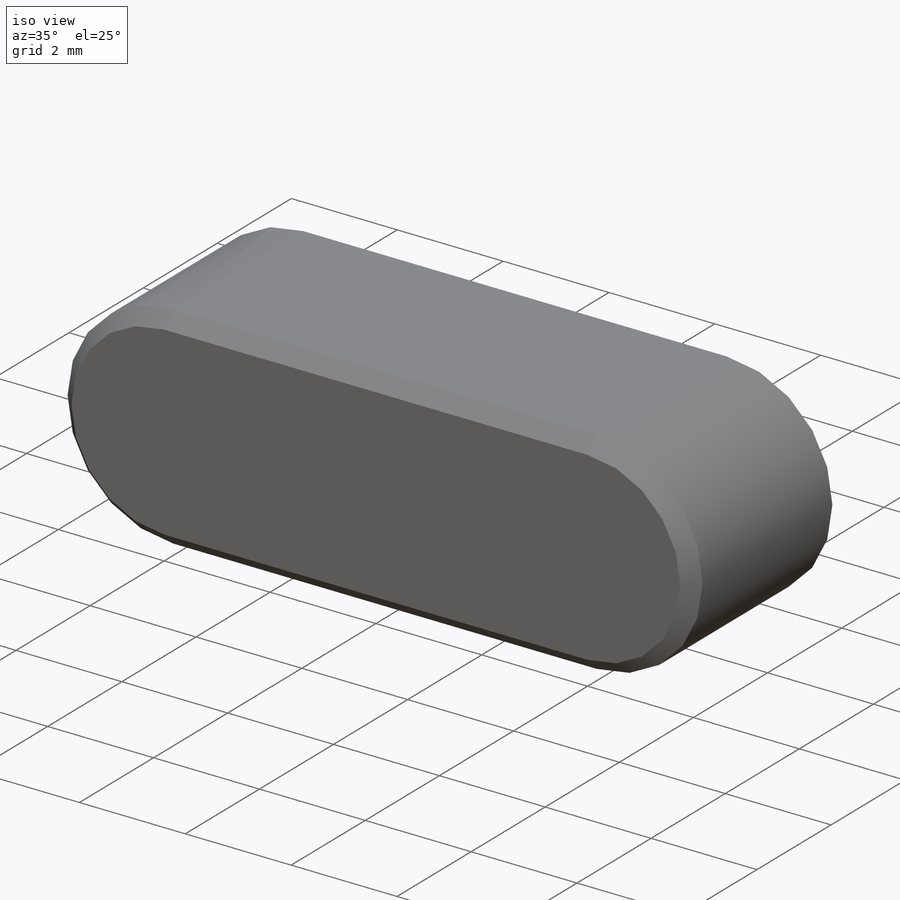
[diagram: iso view]
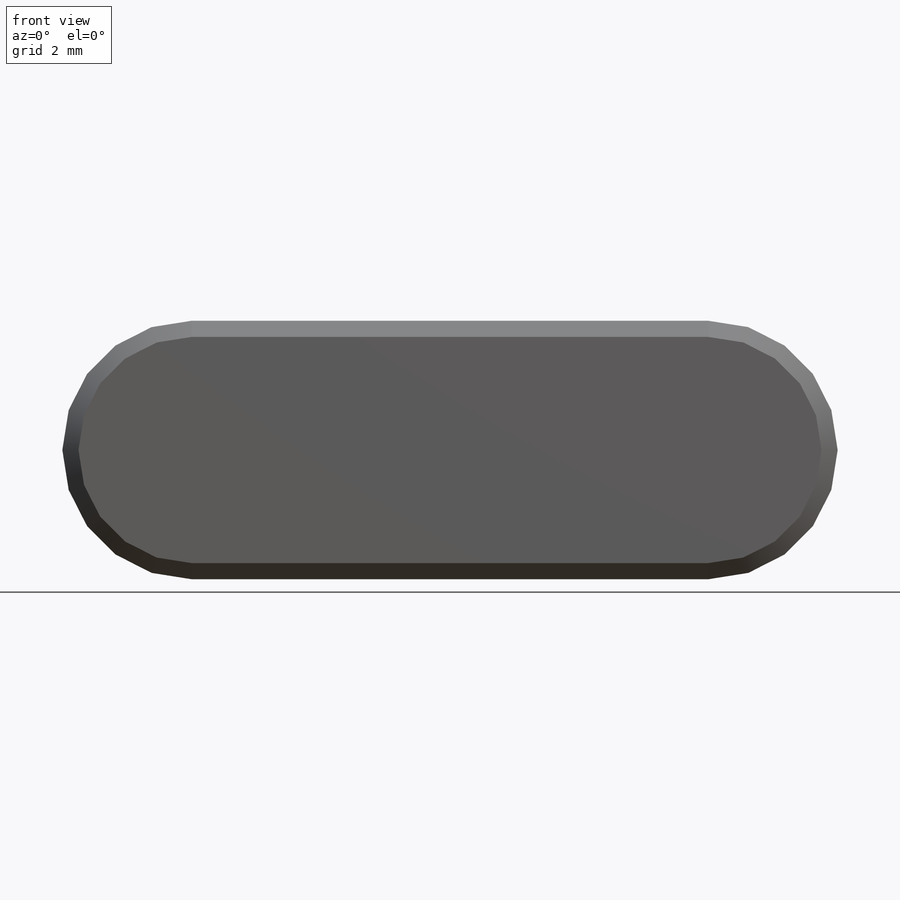
[diagram: front view]
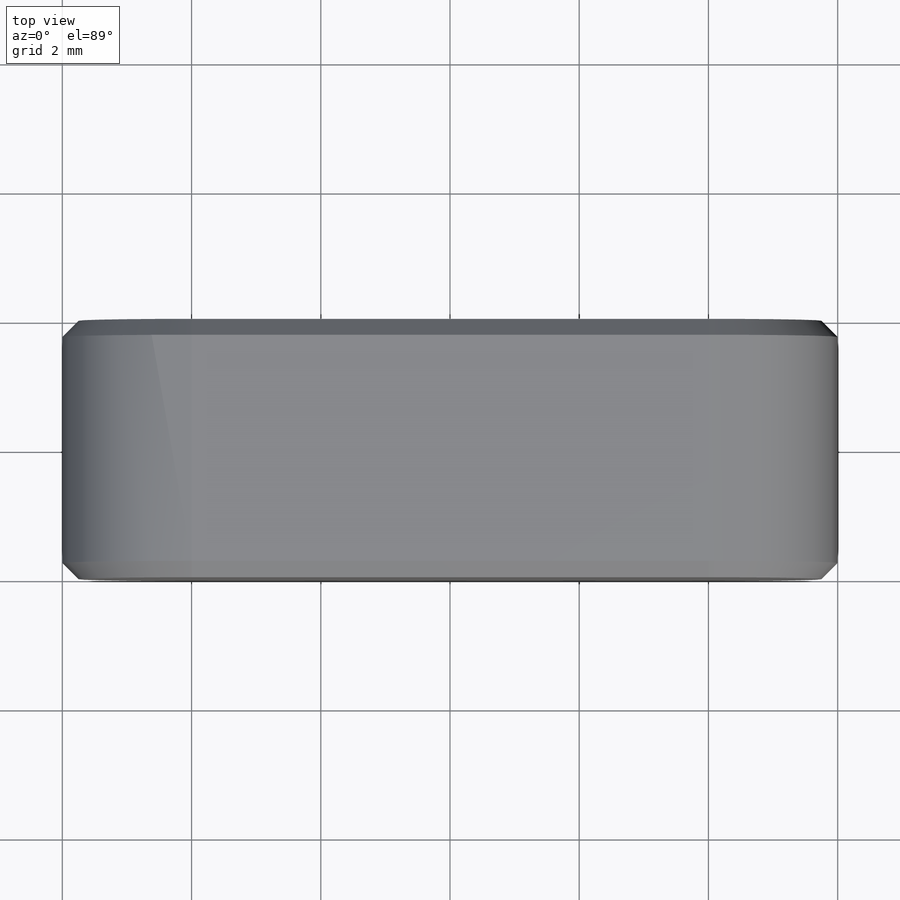
[diagram: top view]
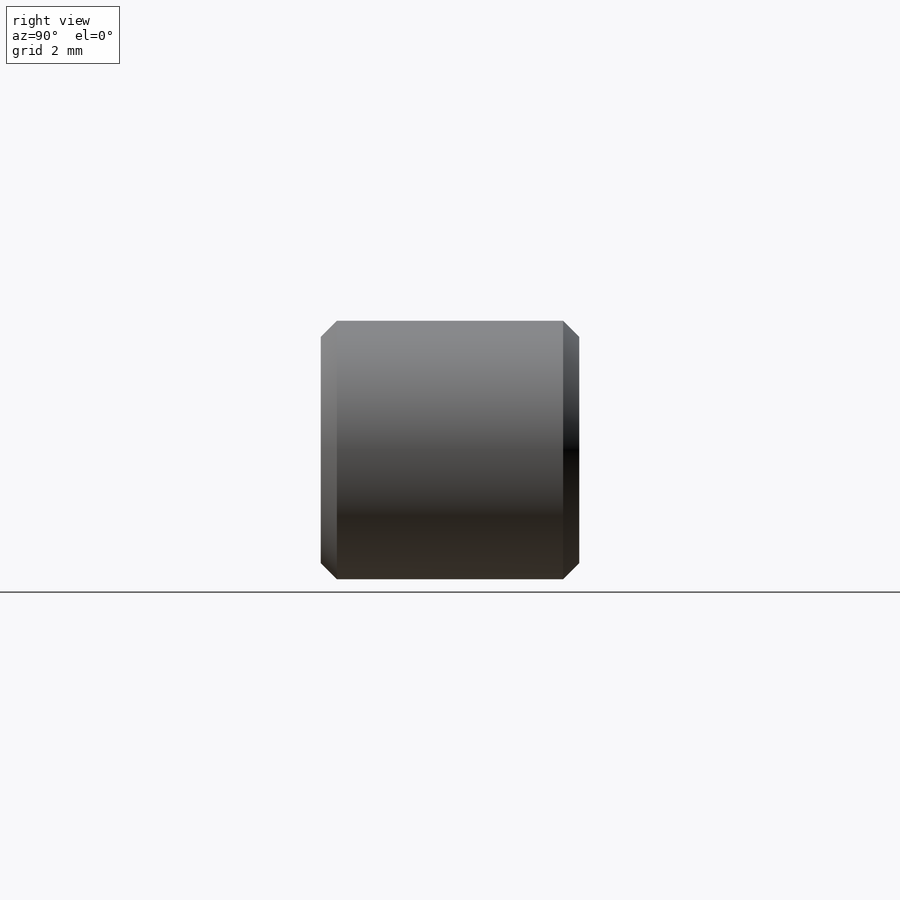
[diagram: right view]
SOLIDWORKS PART (.sldprt)
format: sldprt  version: not decoded by parser v0  size: 337,920 bytes
history: native  units: mm
features: sketch x3, extrude x3, material x1, chamfer x1 (+12 scaffold rows collapsed)
feature tree (20):
  scaffold x12  (default folders/planes/origin — collapsed)
  material  "材质 <未指定>"
  sketch  "Sketch1"  dims[L=12.0mm b=4.0mm]
  extrude  "BaseKey"  Depth=4mm h=4mm
  sketch  "Sketch2"
  extrude  "Extrude1"  Depth=4mm
  sketch  "Sketch3"
  extrude  "Extrude2"  Depth=4mm
  chamfer  "Chamfer1"  Distance=0.25mm Angle=45deg c=0.25mm
decode coverage: 5 of 7 modeling features carry decoded parameters
note: suppression state not decoded; provenance and decode notes live in map.json
